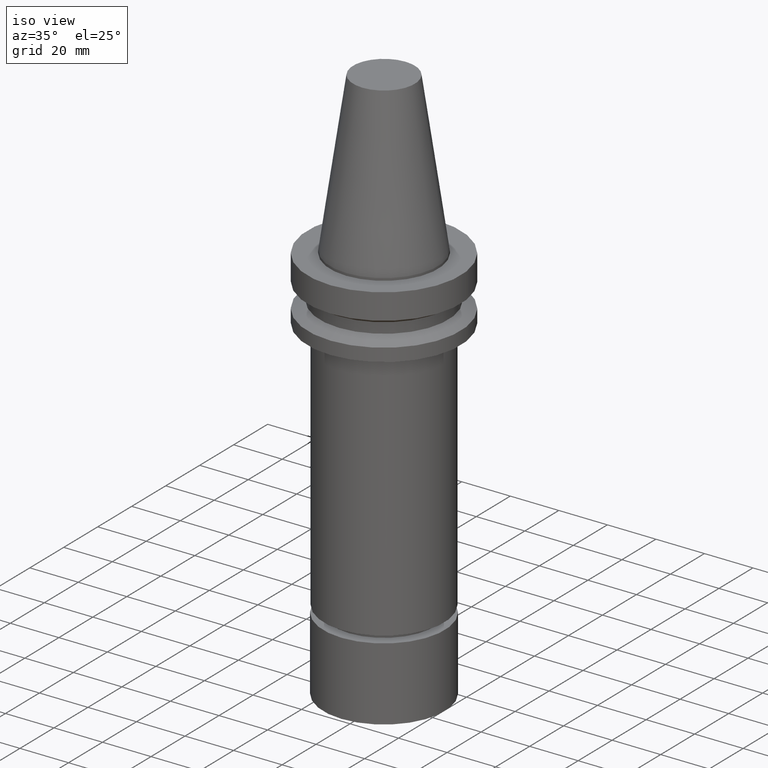
[diagram: clean part render]
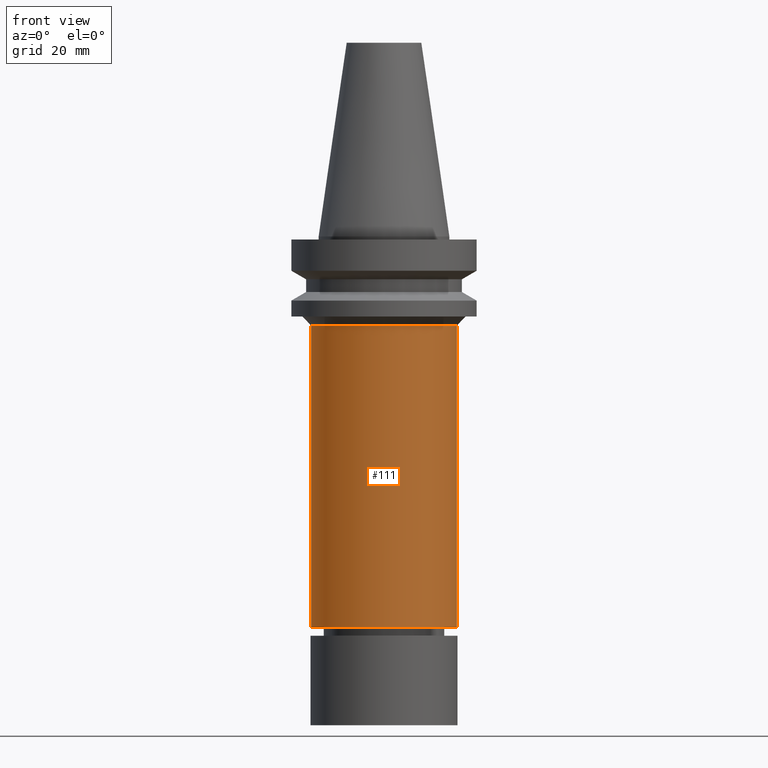
[diagram: tour spotlight — one face highlighted and labeled with its STEP entity id]
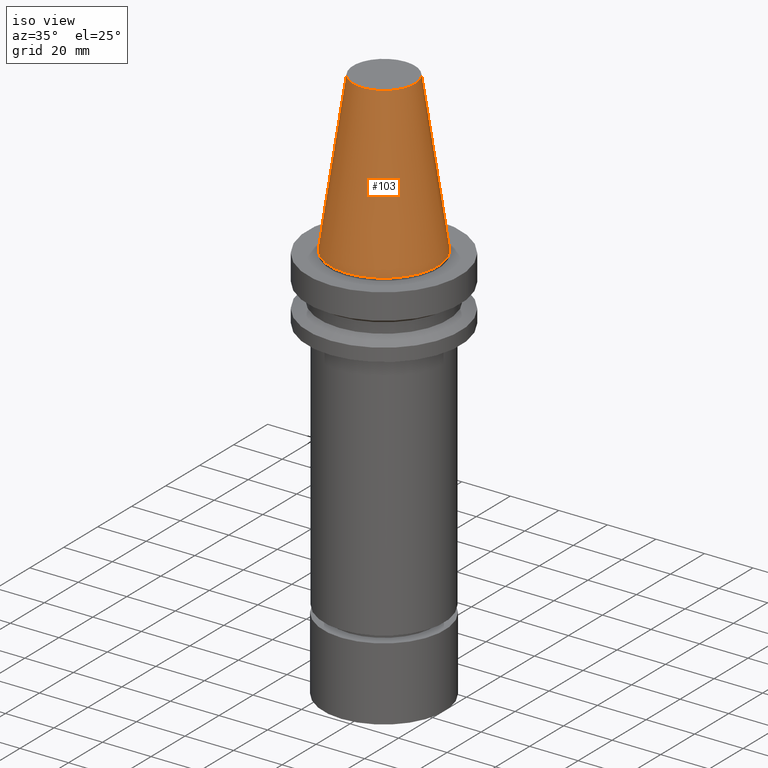
[diagram: tour spotlight — one face highlighted and labeled with its STEP entity id]
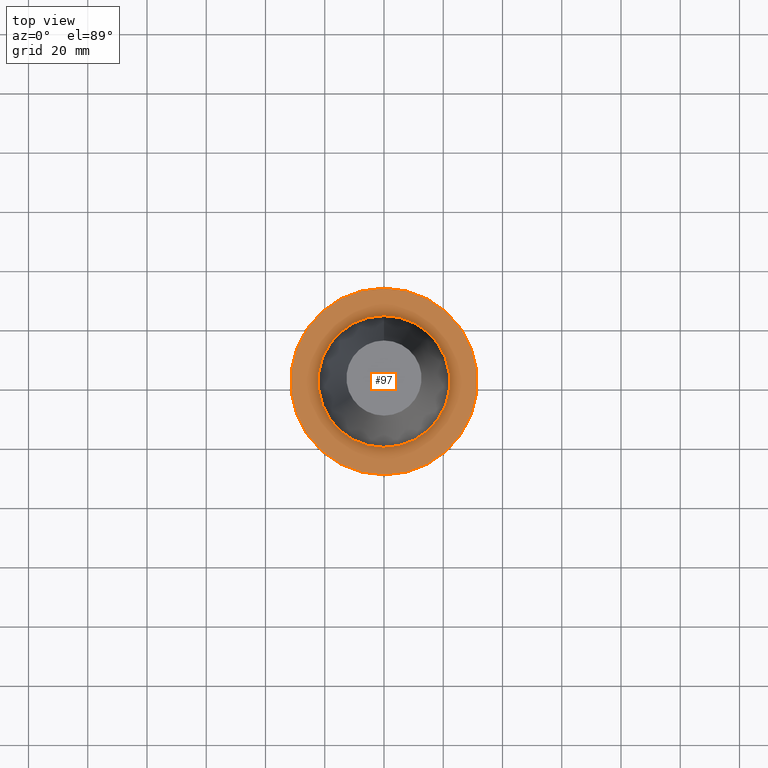
[diagram: tour spotlight — one face highlighted and labeled with its STEP entity id]
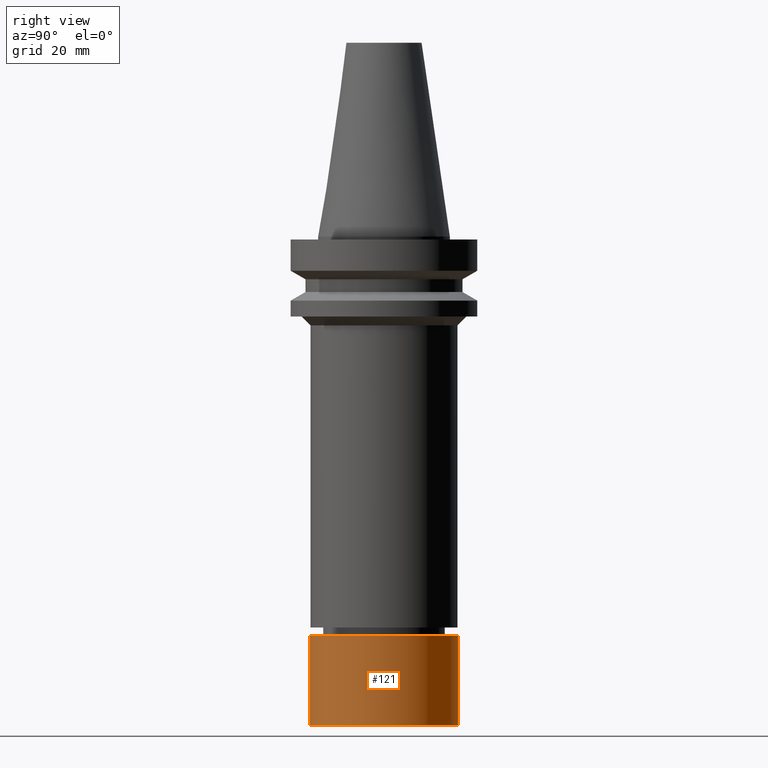
[diagram: tour spotlight — one face highlighted and labeled with its STEP entity id]
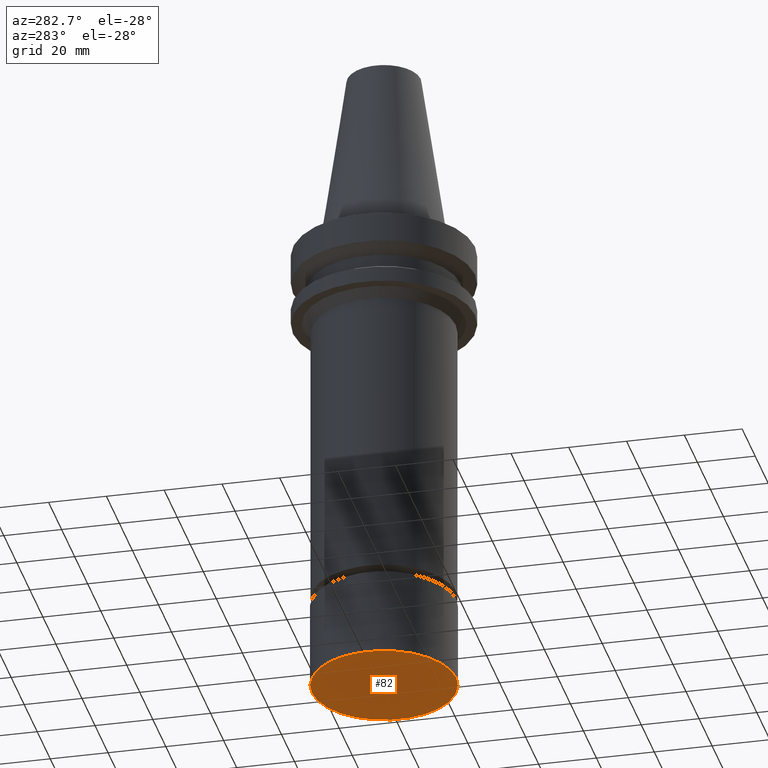
[diagram: tour spotlight — one face highlighted and labeled with its STEP entity id]
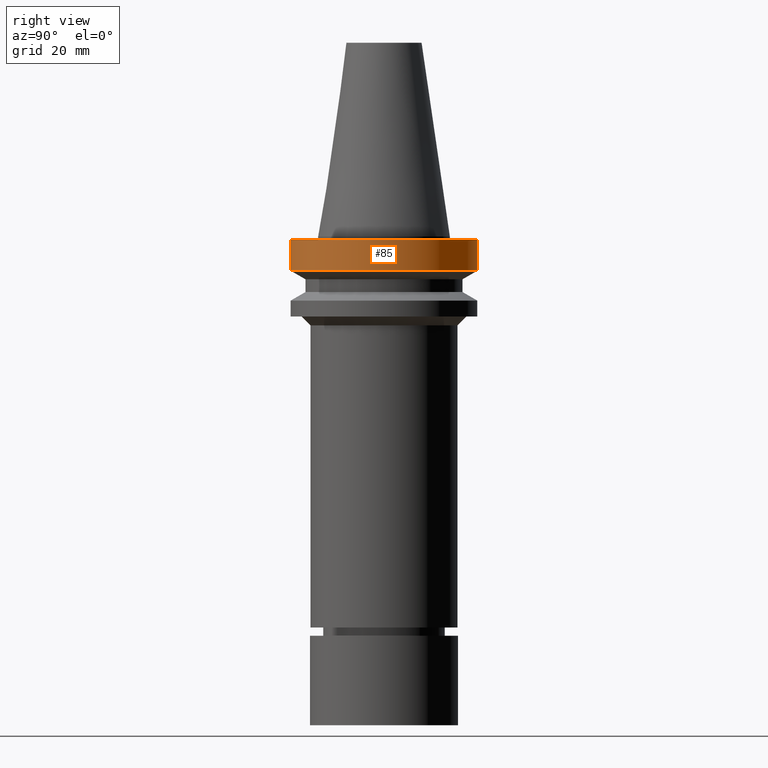
[diagram: tour spotlight — one face highlighted and labeled with its STEP entity id]
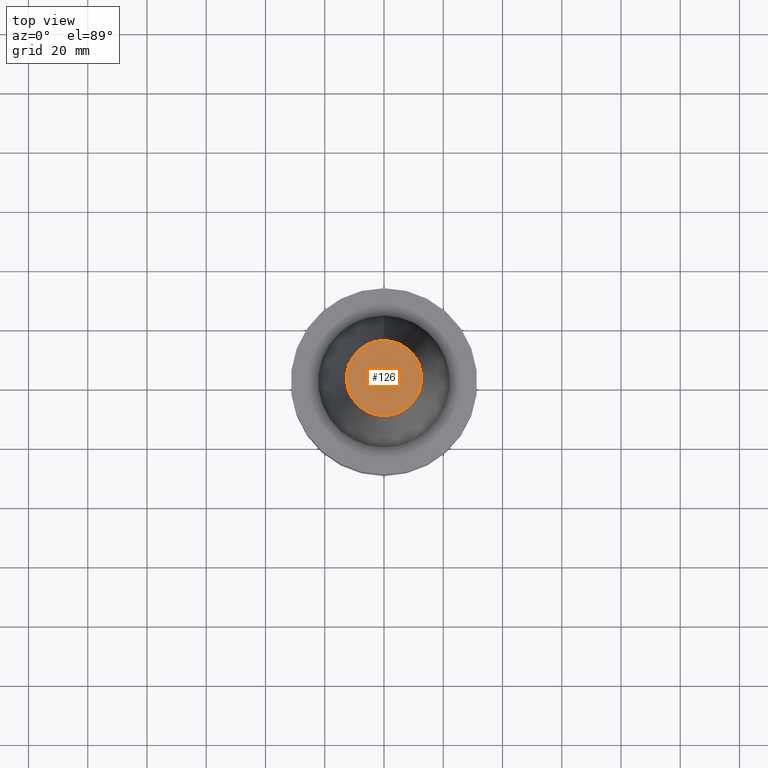
[diagram: tour spotlight — one face highlighted and labeled with its STEP entity id]
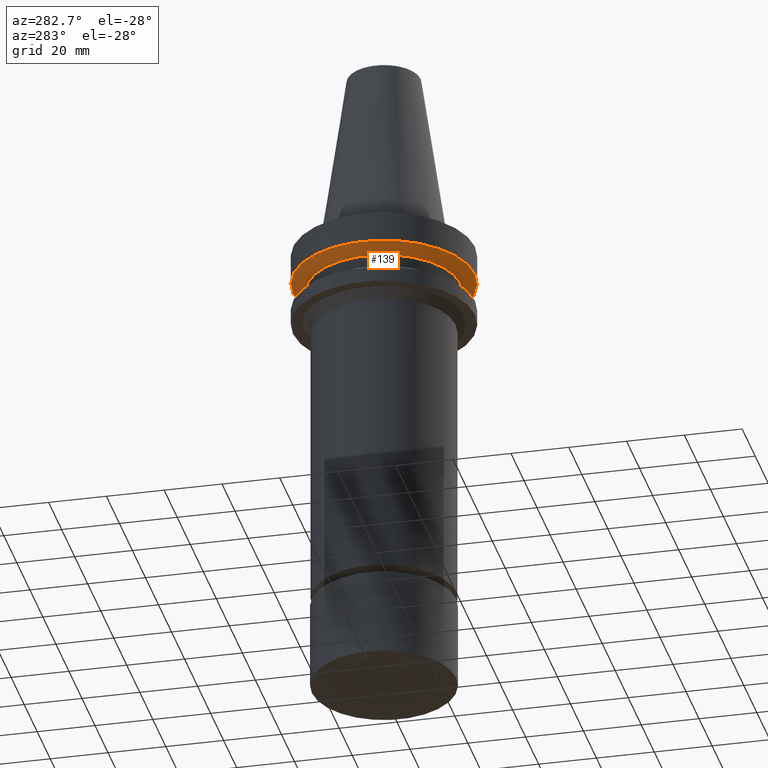
[diagram: tour spotlight — one face highlighted and labeled with its STEP entity id]
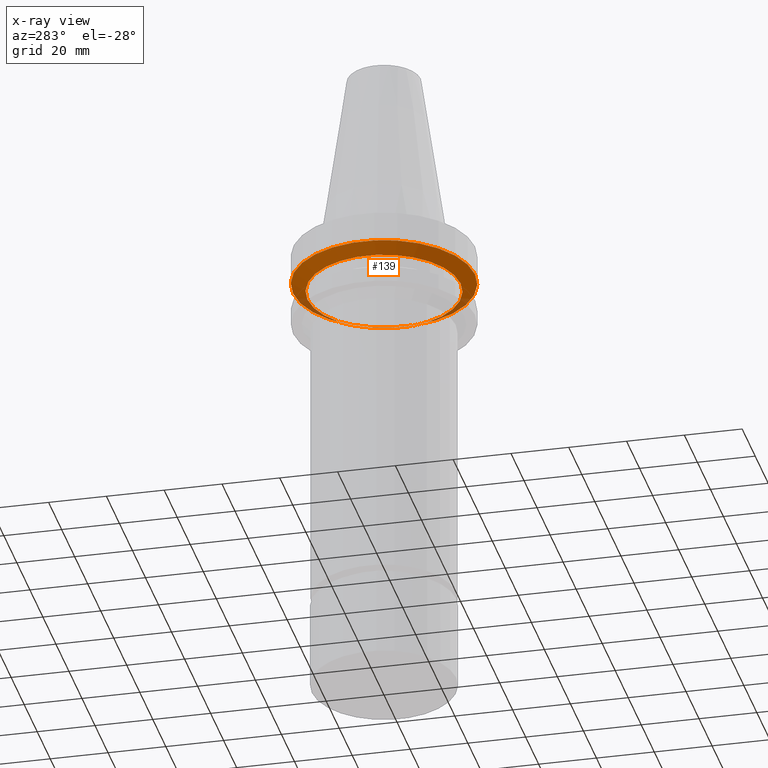
[diagram: x-ray of the same camera — body ghosted, this tour face saturated]
A machine part: a face-by-face anatomy tour. The part has 21 B-rep faces; the first image is the clean iso view, then the 8 largest visible faces are spotlighted one at a time (largest first), each with its STEP entity span.

Face 1 — front view, entity #111. In plain terms, the highlighted cylindrical surface (bore or boss wall) has radius 24.8 mm, axis along (0, 0, -1).
Definition (entity closure, byte-faithful):
#75=EDGE_CURVE('Unnamed[1]',#201,#201,#202,.T.);
#92=EDGE_CURVE('Unnamed[1]',#227,#227,#228,.T.);
#111=ADVANCED_FACE('Unnamed[1]',(#255,#256),#257,.T.);
#201=VERTEX_POINT('',#377);
#202=CIRCLE('',#378,24.8000000000002);
#227=VERTEX_POINT('',#410);
#228=CIRCLE('',#411,24.7999999999997);
#255=FACE_BOUND('',#445,.T.);
#256=FACE_BOUND('',#446,.T.);
#257=CYLINDRICAL_SURFACE('',#447,24.7999999999999);
#377=CARTESIAN_POINT('',(8.08267852271585E-015,24.8000000000003,-132.000157569404));
#378=AXIS2_PLACEMENT_3D('',#580,#581,#582);
#410=CARTESIAN_POINT('',(1.83697045278272E-015,24.7999999999998,-30.0000041491422));
#411=AXIS2_PLACEMENT_3D('',#609,#610,#611);
#445=EDGE_LOOP('',(#641));
#446=EDGE_LOOP('',(#642));
#447=AXIS2_PLACEMENT_3D('',#643,#644,#645);
#580=CARTESIAN_POINT('',(8.08267852271585E-015,7.87185539738301E-014,-132.000157569404));
#581=DIRECTION('',(6.12323399573676E-017,7.81354581145529E-018,-1.0));
#582=DIRECTION('',(-5.30559442416852E-033,1.0,7.81354581145529E-018));
#609=CARTESIAN_POINT('',(1.83697045278272E-015,7.79215711023054E-014,-30.0000041491422));
#610=DIRECTION('',(6.12323399573677E-017,7.8135458114553E-018,-1.0));
#611=DIRECTION('',(-5.30559442416852E-033,1.0,7.81354581145529E-018));
#641=ORIENTED_EDGE('',*,*,#75,.F.);
#642=ORIENTED_EDGE('',*,*,#92,.T.);
#643=CARTESIAN_POINT('',(4.95982448774928E-015,7.83200625380677E-014,-81.0000808592732));
#644=DIRECTION('',(6.12323399573677E-017,7.81354581145528E-018,-1.0));
#645=DIRECTION('',(-5.30559442416852E-033,1.0,7.81354581145528E-018));

Face 2 — iso view, entity #103. In plain terms, the highlighted conical surface has half-angle 8.297 deg.
Definition (entity closure, byte-faithful):
#79=EDGE_CURVE('Unnamed[1]',#207,#207,#208,.T.);
#103=ADVANCED_FACE('Unnamed[1]',(#243,#244),#245,.T.);
#115=EDGE_CURVE('Unnamed[1]',#262,#262,#263,.T.);
#207=VERTEX_POINT('',#385);
#208=CIRCLE('',#386,22.225);
#243=FACE_BOUND('',#430,.T.);
#244=FACE_BOUND('',#431,.T.);
#245=CONICAL_SURFACE('',#432,17.45625,0.144812498238936);
#262=VERTEX_POINT('',#454);
#263=CIRCLE('',#455,12.6875000000001);
#385=CARTESIAN_POINT('',(1.71319921032766E-029,22.2250000000001,-2.8153873565375E-013));
#386=AXIS2_PLACEMENT_3D('',#586,#587,#588);
#430=EDGE_LOOP('',(#627));
#431=EDGE_LOOP('',(#628));
#432=AXIS2_PLACEMENT_3D('',#629,#630,#631);
#454=CARTESIAN_POINT('',(-4.00459503321185E-015,12.6875000000002,65.4000000000001));
#455=AXIS2_PLACEMENT_3D('',#649,#650,#651);
#586=CARTESIAN_POINT('',(1.74032777401202E-029,7.76871646955422E-014,-2.8421709430404E-013));
#587=DIRECTION('',(6.12323399573677E-017,7.81354581145528E-018,-1.0));
#588=DIRECTION('',(-5.30559442416852E-033,1.0,7.81354581145528E-018));
#627=ORIENTED_EDGE('',*,*,#79,.F.);
#628=ORIENTED_EDGE('',*,*,#115,.T.);
#629=CARTESIAN_POINT('',(-2.00229751660592E-015,7.74316617475076E-014,32.6999999999999));
#630=DIRECTION('',(6.12323399573677E-017,7.81354581145528E-018,-1.0));
#631=DIRECTION('',(-5.30559442416852E-033,1.0,7.81354581145528E-018));
#649=CARTESIAN_POINT('',(-4.00459503321185E-015,7.7176158799473E-014,65.4000000000001));
#650=DIRECTION('',(6.12323399573677E-017,7.81354581145528E-018,-1.0));
#651=DIRECTION('',(-5.30559442416852E-033,1.0,7.81354581145528E-018));

Face 3 — top view, entity #97. In plain terms, the highlighted planar face has unit normal (-0, -0, 1).
Definition (entity closure, byte-faithful):
#90=EDGE_CURVE('Unnamed[1]',#224,#224,#225,.T.);
#97=ADVANCED_FACE('Unnamed[1]',(#234,#235),#236,.T.);
#145=EDGE_CURVE('Unnamed[1]',#307,#307,#308,.T.);
#224=VERTEX_POINT('',#406);
#225=CIRCLE('',#407,31.4999999999996);
#234=FACE_OUTER_BOUND('',#419,.T.);
#235=FACE_BOUND('',#420,.T.);
#236=PLANE('',#421);
#307=VERTEX_POINT('',#510);
#308=CIRCLE('',#511,22.225);
#406=CARTESIAN_POINT('',(6.12323399573568E-017,31.4999999999997,-0.999999999999825));
#407=AXIS2_PLACEMENT_3D('',#606,#607,#608);
#419=EDGE_LOOP('',(#616));
#420=EDGE_LOOP('',(#617));
#421=AXIS2_PLACEMENT_3D('',#618,#619,#620);
#510=CARTESIAN_POINT('',(6.12323399573622E-017,22.2250000000001,-0.999999999999912));
#511=AXIS2_PLACEMENT_3D('',#697,#698,#699);
#606=CARTESIAN_POINT('',(6.12323399573572E-017,7.76949782413536E-014,-0.999999999999829));
#607=DIRECTION('',(6.12323399573677E-017,7.81354581145528E-018,-1.0));
#608=DIRECTION('',(-5.30559442416852E-033,1.0,7.81354581145528E-018));
#616=ORIENTED_EDGE('',*,*,#90,.F.);
#617=ORIENTED_EDGE('',*,*,#145,.T.);
#618=CARTESIAN_POINT('',(6.12323399573595E-017,26.8624999999999,-0.999999999999869));
#619=DIRECTION('',(-6.12323399573677E-017,-9.35138060429241E-015,1.0));
#620=DIRECTION('',(5.77434068963536E-031,-1.0,-9.35138060429241E-015));
#697=CARTESIAN_POINT('',(6.12323399573624E-017,7.76949782413537E-014,-0.999999999999915));
#698=DIRECTION('',(6.12323399573677E-017,7.81354581145528E-018,-1.0));
#699=DIRECTION('',(-5.30559442416852E-033,1.0,7.81354581145528E-018));

Face 4 — right view, entity #121. In plain terms, the highlighted cylindrical surface (bore or boss wall) has radius 25 mm, axis along (0, 0, -1).
Definition (entity closure, byte-faithful):
#94=EDGE_CURVE('Unnamed[1]',#230,#230,#231,.T.);
#108=EDGE_CURVE('Unnamed[1]',#251,#251,#252,.T.);
#121=ADVANCED_FACE('Unnamed[1]',(#269,#270),#271,.T.);
#230=VERTEX_POINT('',#414);
#231=CIRCLE('',#415,24.9999999999999);
#251=VERTEX_POINT('',#440);
#252=CIRCLE('',#441,24.9999999999999);
#269=FACE_BOUND('',#462,.T.);
#270=FACE_BOUND('',#463,.T.);
#271=CYLINDRICAL_SURFACE('',#464,24.9999999999999);
#414=CARTESIAN_POINT('',(8.25411942625316E-015,25.0,-134.8));
#415=AXIS2_PLACEMENT_3D('',#612,#613,#614);
#440=CARTESIAN_POINT('',(1.01033360929657E-014,25.0,-165.0));
#441=AXIS2_PLACEMENT_3D('',#637,#638,#639);
#462=EDGE_LOOP('',(#654));
#463=EDGE_LOOP('',(#655));
#464=AXIS2_PLACEMENT_3D('',#656,#657,#658);
#612=CARTESIAN_POINT('',(8.25411942625316E-015,7.87404306709264E-014,-134.8));
#613=DIRECTION('',(6.12323399573677E-017,7.81354581145529E-018,-1.0));
#614=DIRECTION('',(-5.30559442416852E-033,1.0,7.81354581145529E-018));
#637=CARTESIAN_POINT('',(1.01033360929657E-014,7.89763997544323E-014,-165.0));
#638=DIRECTION('',(6.12323399573677E-017,7.81354581145529E-018,-1.0));
#639=DIRECTION('',(-5.30559442416852E-033,1.0,7.81354581145528E-018));
#654=ORIENTED_EDGE('',*,*,#108,.F.);
#655=ORIENTED_EDGE('',*,*,#94,.T.);
#656=CARTESIAN_POINT('',(9.17872775960941E-015,7.88584152126793E-014,-149.9));
#657=DIRECTION('',(6.12323399573677E-017,7.81354581145529E-018,-1.0));
#658=DIRECTION('',(-5.30559442416852E-033,1.0,7.81354581145528E-018));

Face 5 — auxiliary view, entity #82. In plain terms, the highlighted planar face has unit normal (0, 0, -1).
Definition (entity closure, byte-faithful):
#82=ADVANCED_FACE('Unnamed[1]',(#211),#212,.T.);
#108=EDGE_CURVE('Unnamed[1]',#251,#251,#252,.T.);
#211=FACE_OUTER_BOUND('',#390,.T.);
#212=PLANE('',#391);
#251=VERTEX_POINT('',#440);
#252=CIRCLE('',#441,24.9999999999999);
#390=EDGE_LOOP('',(#590));
#391=AXIS2_PLACEMENT_3D('',#591,#592,#593);
#440=CARTESIAN_POINT('',(1.01033360929657E-014,25.0,-165.0));
#441=AXIS2_PLACEMENT_3D('',#637,#638,#639);
#590=ORIENTED_EDGE('',*,*,#108,.T.);
#591=CARTESIAN_POINT('',(1.01033360929657E-014,12.5,-165.0));
#592=DIRECTION('',(6.12323399573677E-017,1.22464679914735E-016,-1.0));
#593=DIRECTION('',(-1.23259516440783E-032,1.0,1.22464679914735E-016));
#637=CARTESIAN_POINT('',(1.01033360929657E-014,7.89763997544323E-014,-165.0));
#638=DIRECTION('',(6.12323399573677E-017,7.81354581145529E-018,-1.0));
#639=DIRECTION('',(-5.30559442416852E-033,1.0,7.81354581145528E-018));

Face 6 — right view, entity #85. In plain terms, the highlighted cylindrical surface (bore or boss wall) has radius 31.5 mm, axis along (0, 0, -1).
Definition (entity closure, byte-faithful):
#85=ADVANCED_FACE('Unnamed[1]',(#215,#216),#217,.T.);
#90=EDGE_CURVE('Unnamed[1]',#224,#224,#225,.T.);
#136=EDGE_CURVE('Unnamed[1]',#293,#293,#294,.T.);
#215=FACE_BOUND('',#395,.T.);
#216=FACE_BOUND('',#396,.T.);
#217=CYLINDRICAL_SURFACE('',#397,31.5);
#224=VERTEX_POINT('',#406);
#225=CIRCLE('',#407,31.4999999999996);
#293=VERTEX_POINT('',#492);
#294=CIRCLE('',#493,31.5000000000003);
#395=EDGE_LOOP('',(#595));
#396=EDGE_LOOP('',(#596));
#397=AXIS2_PLACEMENT_3D('',#597,#598,#599);
#406=CARTESIAN_POINT('',(6.12323399573568E-017,31.4999999999997,-0.999999999999825));
#407=AXIS2_PLACEMENT_3D('',#606,#607,#608);
#492=CARTESIAN_POINT('',(7.08182973902924E-016,31.5000000000004,-11.5655056526664));
#493=AXIS2_PLACEMENT_3D('',#682,#683,#684);
#595=ORIENTED_EDGE('',*,*,#136,.F.);
#596=ORIENTED_EDGE('',*,*,#90,.T.);
#597=CARTESIAN_POINT('',(3.8470765693014E-016,7.77362552725728E-014,-6.28275282633308));
#598=DIRECTION('',(6.12323399573677E-017,7.8135458114553E-018,-1.0));
#599=DIRECTION('',(-5.30559442416852E-033,1.0,7.8135458114553E-018));
#606=CARTESIAN_POINT('',(6.12323399573572E-017,7.76949782413536E-014,-0.999999999999829));
#607=DIRECTION('',(6.12323399573677E-017,7.81354581145528E-018,-1.0));
#608=DIRECTION('',(-5.30559442416852E-033,1.0,7.81354581145528E-018));
#682=CARTESIAN_POINT('',(7.08182973902924E-016,7.7777532303792E-014,-11.5655056526664));
#683=DIRECTION('',(6.12323399573677E-017,7.81354581145529E-018,-1.0));
#684=DIRECTION('',(-5.30559442416852E-033,1.0,7.81354581145529E-018));

Face 7 — top view, entity #126. In plain terms, the highlighted planar face has unit normal (-0, 0, 1).
Definition (entity closure, byte-faithful):
#115=EDGE_CURVE('Unnamed[1]',#262,#262,#263,.T.);
#126=ADVANCED_FACE('Unnamed[1]',(#277),#278,.T.);
#262=VERTEX_POINT('',#454);
#263=CIRCLE('',#455,12.6875000000001);
#277=FACE_OUTER_BOUND('',#472,.T.);
#278=PLANE('',#473);
#454=CARTESIAN_POINT('',(-4.00459503321185E-015,12.6875000000002,65.4000000000001));
#455=AXIS2_PLACEMENT_3D('',#649,#650,#651);
#472=EDGE_LOOP('',(#663));
#473=AXIS2_PLACEMENT_3D('',#664,#665,#666);
#649=CARTESIAN_POINT('',(-4.00459503321185E-015,7.7176158799473E-014,65.4000000000001));
#650=DIRECTION('',(6.12323399573677E-017,7.81354581145528E-018,-1.0));
#651=DIRECTION('',(-5.30559442416852E-033,1.0,7.81354581145528E-018));
#663=ORIENTED_EDGE('',*,*,#115,.F.);
#664=CARTESIAN_POINT('',(-4.00459503321185E-015,6.34375000000014,65.4000000000001));
#665=DIRECTION('',(-6.12323399573677E-017,9.97602686800683E-016,1.0));
#666=DIRECTION('',(-5.62583941297938E-032,-1.0,9.97602686800683E-016));

Face 8 — auxiliary view, entity #139. An x-ray twin of the same camera follows (body ghosted, this face saturated) — the face is partly hidden behind the body. In plain terms, the highlighted conical surface has half-angle 60 deg.
Definition (entity closure, byte-faithful):
#136=EDGE_CURVE('Unnamed[1]',#293,#293,#294,.T.);
#139=ADVANCED_FACE('Unnamed[1]',(#297,#298),#299,.T.);
#180=EDGE_CURVE('Unnamed[1]',#362,#362,#363,.T.);
#293=VERTEX_POINT('',#492);
#294=CIRCLE('',#493,31.5000000000003);
#297=FACE_BOUND('',#497,.T.);
#298=FACE_BOUND('',#498,.T.);
#299=CONICAL_SURFACE('',#499,28.9999999999998,1.04719755119657);
#362=VERTEX_POINT('',#577);
#363=CIRCLE('',#578,26.4999999999994);
#492=CARTESIAN_POINT('',(7.08182973902924E-016,31.5000000000004,-11.5655056526664));
#493=AXIS2_PLACEMENT_3D('',#682,#683,#684);
#497=EDGE_LOOP('',(#686));
#498=EDGE_LOOP('',(#687));
#499=AXIS2_PLACEMENT_3D('',#688,#689,#690);
#577=CARTESIAN_POINT('',(8.8494551369045E-016,26.4999999999995,-14.4522569986152));
#578=AXIS2_PLACEMENT_3D('',#758,#759,#760);
#682=CARTESIAN_POINT('',(7.08182973902924E-016,7.7777532303792E-014,-11.5655056526664));
#683=DIRECTION('',(6.12323399573677E-017,7.81354581145529E-018,-1.0));
#684=DIRECTION('',(-5.30559442416852E-033,1.0,7.81354581145529E-018));
#686=ORIENTED_EDGE('',*,*,#180,.F.);
#687=ORIENTED_EDGE('',*,*,#136,.T.);
#688=CARTESIAN_POINT('',(7.96564243796687E-016,7.77888101857359E-014,-13.0088813256408));
#689=DIRECTION('',(-6.12323399573677E-017,-7.81354581145529E-018,1.0));
#690=DIRECTION('',(-5.30559442416852E-033,1.0,7.81354581145529E-018));
#758=CARTESIAN_POINT('',(8.84945513690451E-016,7.78000880676798E-014,-14.4522569986152));
#759=DIRECTION('',(6.12323399573677E-017,7.81354581145529E-018,-1.0));
#760=DIRECTION('',(-5.30559442416852E-033,1.0,7.81354581145529E-018));